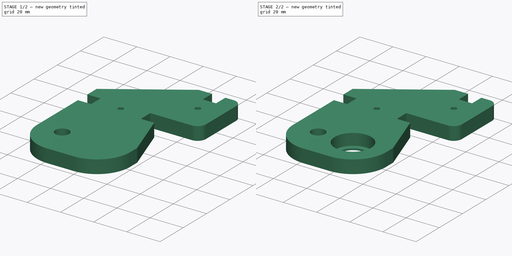
[diagram: build sequence overview — one tinted view per stage of 2, left to right]
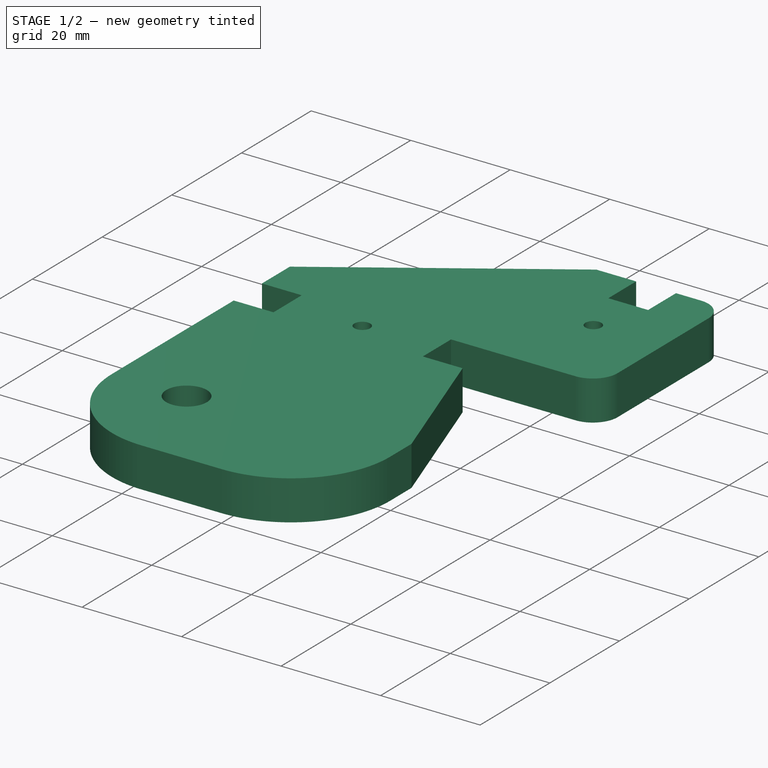
[diagram: stage 1 of 2 — iso view after this stage's code; geometry added in this stage tinted green]
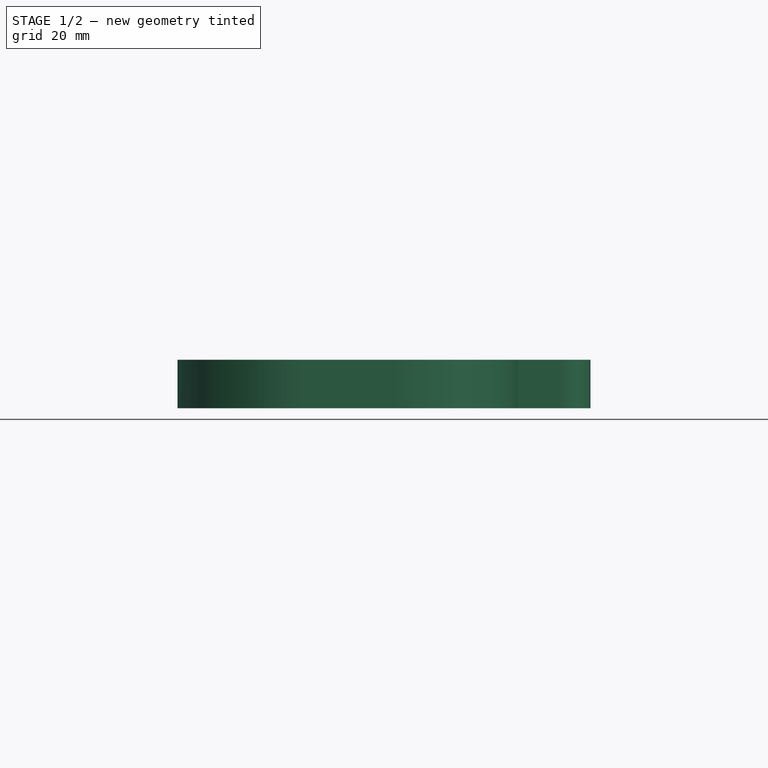
[diagram: stage 1 of 2 — front view after this stage's code; geometry added in this stage tinted green]
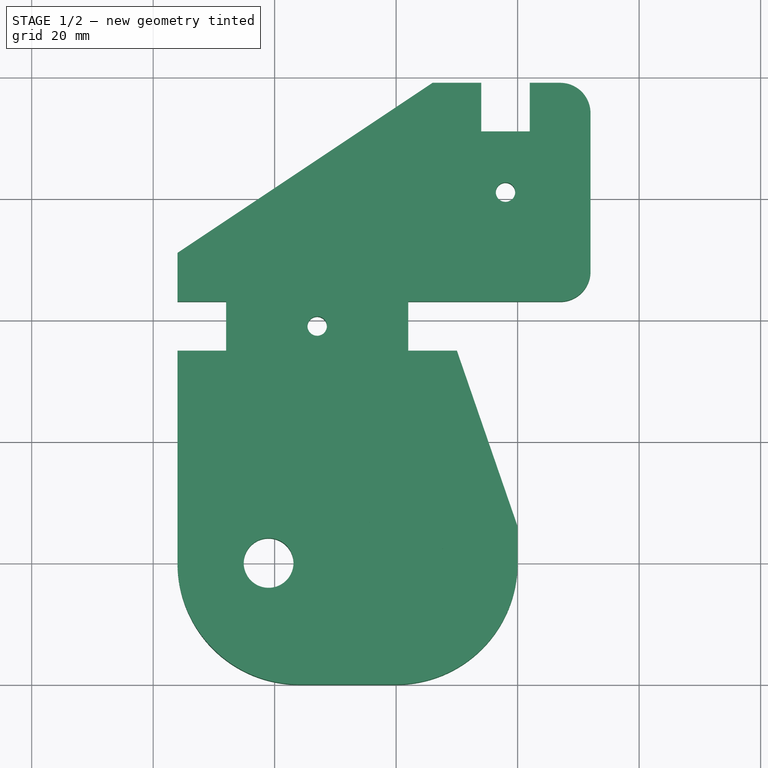
[diagram: stage 1 of 2 — top view after this stage's code; geometry added in this stage tinted green]
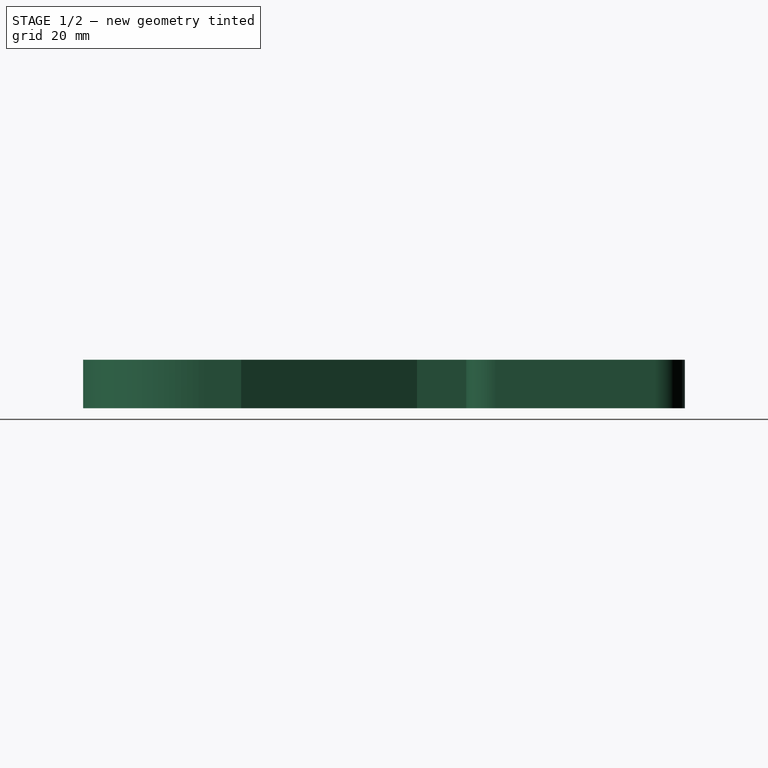
[diagram: stage 1 of 2 — right view after this stage's code; geometry added in this stage tinted green]
FCSTD DOCUMENT  (FreeCAD 0.16R6703 (Git))
Label: Z-upper-support
License: All rights reserved
LicenseURL: http://en.wikipedia.org/wiki/All_rights_reserved
objects: Sketcher::SketchObject×1, PartDesign::Pad×1, Part::Cylinder×1, Part::Cut×1
note: 5 computed .brp shape members not serialized (recipe doc carries the construction recipe); baked Part::Feature solids carry a one-line shape summary decoded from their .brp

FEATURE [Sketcher::SketchObject] Sketch
  sketch-geometry (41):
    g0: LineSegment StartX=5.1468e-07 StartY=-20 StartZ=0 EndX=-16 EndY=-20 EndZ=0
    g1: Circle CenterX=-21 CenterY=-1.9362e-08 CenterZ=0 NormalX=0 NormalY=0 NormalZ=1 Radius=4.1
    g2: Circle CenterX=2.47849e-07 CenterY=-1.9362e-08 CenterZ=0 NormalX=0 NormalY=0 NormalZ=1 Radius=8
    g3: LineSegment StartX=-36 StartY=51.05 StartZ=0 EndX=-36 EndY=43.05 EndZ=0
    g4: LineSegment StartX=-28 StartY=43.05 StartZ=0 EndX=-36 EndY=43.05 EndZ=0
    g5: LineSegment StartX=-28 StartY=34.95 StartZ=0 EndX=-36 EndY=34.95 EndZ=0
    g6: LineSegment [constr] StartX=2.47849e-07 StartY=-1.9362e-08 StartZ=0 EndX=-21 EndY=-1.9362e-08 EndZ=0
    g7: LineSegment [constr] StartX=2.47849e-07 StartY=-1.9362e-08 StartZ=0 EndX=2.47849e-07 EndY=-20 EndZ=0
    g8: ArcOfCircle CenterX=-16 CenterY=-1.40139e-07 CenterZ=0 NormalX=0 NormalY=0 NormalZ=1 Radius=20 StartAngle=3.14159 EndAngle=4.71239
    g9: ArcOfCircle CenterX=5.1468e-07 CenterY=-2.86194e-07 CenterZ=0 NormalX=0 NormalY=0 NormalZ=1 Radius=20 StartAngle=4.71239 EndAngle=6.28319
    g10: LineSegment StartX=-36 StartY=-1.9362e-08 StartZ=0 EndX=-36 EndY=34.95 EndZ=0
    g11: LineSegment [constr] StartX=-21 StartY=-1.9362e-08 StartZ=0 EndX=-36 EndY=-1.9362e-08 EndZ=0
    g12: LineSegment StartX=2 StartY=43.05 StartZ=0 EndX=27 EndY=43.05 EndZ=0
    g13: LineSegment StartX=32 StartY=48.05 StartZ=0 EndX=32 EndY=74.05 EndZ=0
    g14: ArcOfCircle CenterX=27 CenterY=74.05 CenterZ=0 NormalX=0 NormalY=0 NormalZ=1 Radius=5 StartAngle=0 EndAngle=1.5708
    g15: ArcOfCircle CenterX=27 CenterY=48.05 CenterZ=0 NormalX=0 NormalY=0 NormalZ=1 Radius=5 StartAngle=4.71239 EndAngle=6.28319
    g16: LineSegment StartX=6 StartY=79.05 StartZ=0 EndX=14 EndY=79.05 EndZ=0
    g17: LineSegment StartX=14 StartY=79.05 StartZ=0 EndX=14 EndY=71.05 EndZ=0
    g18: LineSegment StartX=22 StartY=71.05 StartZ=0 EndX=22 EndY=79.05 EndZ=0
    g19: LineSegment StartX=22 StartY=79.05 StartZ=0 EndX=27 EndY=79.05 EndZ=0
    g20: LineSegment [constr] StartX=22 StartY=43.05 StartZ=0 EndX=22 EndY=71.05 EndZ=0
    g21: LineSegment StartX=-36 StartY=51.05 StartZ=0 EndX=6 EndY=79.05 EndZ=0
    g22: LineSegment [constr] StartX=2 StartY=43.05 StartZ=0 EndX=2 EndY=71.05 EndZ=0
    g23: Circle CenterX=-13 CenterY=39 CenterZ=0 NormalX=0 NormalY=0 NormalZ=1 Radius=1.6
    g24: Circle CenterX=18 CenterY=61.05 CenterZ=0 NormalX=0 NormalY=0 NormalZ=1 Radius=1.6
    g25: LineSegment [constr] StartX=-28 StartY=43.05 StartZ=0 EndX=2 EndY=43.05 EndZ=0
    g26: LineSegment [constr] StartX=-13 StartY=39 StartZ=0 EndX=-13 EndY=43.05 EndZ=0
    g27: LineSegment [constr] StartX=-13 StartY=39 StartZ=0 EndX=2 EndY=39 EndZ=0
    g28: LineSegment [constr] StartX=-13 StartY=-1.9362e-08 StartZ=0 EndX=-13 EndY=39 EndZ=0
    g29: LineSegment [constr] StartX=2 StartY=71.05 StartZ=0 EndX=18 EndY=71.05 EndZ=0
    g30: LineSegment StartX=2 StartY=34.95 StartZ=0 EndX=2 EndY=39 EndZ=0
    g31: LineSegment StartX=2 StartY=39 StartZ=0 EndX=2 EndY=43.05 EndZ=0
    g32: LineSegment StartX=2 StartY=34.95 StartZ=0 EndX=10 EndY=34.95 EndZ=0
    g33: LineSegment StartX=-28 StartY=39 StartZ=0 EndX=-28 EndY=34.95 EndZ=0
    g34: LineSegment StartX=14 StartY=71.05 StartZ=0 EndX=18 EndY=71.05 EndZ=0
    g35: LineSegment StartX=18 StartY=71.05 StartZ=0 EndX=22 EndY=71.05 EndZ=0
    g36: LineSegment [constr] StartX=18 StartY=61.05 StartZ=0 EndX=18 EndY=71.05 EndZ=0
    g37: LineSegment StartX=10 StartY=34.95 StartZ=0 EndX=20 EndY=6 EndZ=0
    g38: LineSegment StartX=20 StartY=-1.9362e-08 StartZ=0 EndX=20 EndY=6 EndZ=0
    g39: LineSegment StartX=-28 StartY=39 StartZ=0 EndX=-28 EndY=43.05 EndZ=0
    g40: LineSegment [constr] StartX=2.47849e-07 StartY=-1.9362e-08 StartZ=0 EndX=20 EndY=-1.9362e-08 EndZ=0
  constraints (116):
    c: Horizontal(g0)
    c: Radius(g1) = 4.1
    c: Radius(g2) = 8
    c: Vertical(g3)
    c: Coincident(g4,g3)
    c: Horizontal(g4)
    c: Coincident(g6,g2)
    c: Coincident(g6,g1)
    c: Horizontal(g6)
    c: Distance(g6) = 21
    c: Coincident(g7,g2)
    c: PointOnObject(g7,g0)
    c: Vertical(g7)
    c: Distance(g7) = 20
    c: Equal(g1,g5)
    c: Distance(g5) = 8
    c: Tangent(g0,g8) = 1.5708
    c: Tangent(g0,g9) = 1.5708
    c: Coincident(g5,g10)
    c: Horizontal(g5)
    c: Horizontal(g12)
    c: Vertical(g13)
    c: Vertical(g10)
    c: Coincident(g11,g1)
    c: Horizontal(g11)
    c: Tangent(g13,g14) = -1.5708
    c: Radius(g14) = 5
    c: Distance(g11) = 15
    c: Tangent(g12,g15) = -1.5708
    c: Tangent(g13,g15) = -1.5708
    c: Horizontal(g16)
    c: Coincident(g17,g16)
    c: Vertical(g17)
    c: Vertical(g18)
    c: Coincident(g19,g18)
    c: Coincident(g19,g14)
    c: Horizontal(g19)
    c: Tangent(g19,g14)
    c: PointOnObject(g20,g12)
    c: Vertical(g20)
    c: Distance(g20) = 28
    c: Radius(g15) = 5
    c: Vertical(g22)
    c: Radius(g23) = 1.6
    c: Radius(g24) = 1.6
    c: Horizontal(g25)
    c: Coincident(g26,g23)
    c: Vertical(g26)
    c: Distance(g25) = 30
    c: Distance(g3) = 8
    c: Equal(g4,g5)
    c: PointOnObject(g26,g25)
    c: Equal(g17,g18)
    c: Coincident(g27,g23)
    c: Horizontal(g27)
    c: Distance(g27) = 15
    c: PointOnObject(g28,g6)
    c: Vertical(g28)
    c: Distance(g28) = 39
    c: Horizontal(g29)
    c: Distance(g29) = 16
    c: Vertical(g30)
    c: Coincident(g31,g30)
    c: PointOnObject(g31,g12)
    c: Vertical(g31)
    c: Equal(g30,g31)
    c: Horizontal(g32)
    c: Distance(g32) = 8
    c: PointOnObject(g30,g27)
    c: Coincident(g23,g28)
    c: Coincident(g30,g32)
    c: Coincident(g27,g30)
    c: Coincident(g22,g12)
    c: Coincident(g31,g12)
    c: Coincident(g25,g12)
    c: Coincident(g33,g5)
    c: Vertical(g33)
    c: Distance(g26) = 4.05
    c: Coincident(g25,g4)
    c: Coincident(g34,g17)
    c: Horizontal(g34)
    c: Coincident(g35,g34)
    c: Coincident(g35,g18)
    c: Horizontal(g35)
    c: Equal(g34,g35)
    c: Coincident(g34,g29)
    c: Coincident(g20,g18)
    c: Distance(g35) = 4
    c: Coincident(g36,g24)
    c: Coincident(g36,g29)
    c: Vertical(g36)
    c: Distance(g36) = 10
    c: Coincident(g21,g3)
    c: Coincident(g16,g21)
    c: Coincident(g37,g32)
    c: Coincident(g38,g9)
    c: Coincident(g38,g37)
    c: Vertical(g38)
    c: Distance(g18) = 8
    c: Coincident(g29,g22)
    c: Distance(g16) = 8
    c: Coincident(g39,g33)
    c: Coincident(g39,g4)
    c: Vertical(g39)
    c: Equal(g39,g33)
    c: Tangent(g38,g9)
    c: Distance(g39) = 4.05
    c: Coincident(g40,g2)
    c: Horizontal(g40)
    c: Distance(g40) = 20
    c: Distance(g19) = 5
    c: Coincident(g10,g8)
    c: Coincident(g9,g40)
    c: Coincident(g8,g11)
    c: Tangent(g8,g10)
    c: Distance(g38) = 6
FEATURE [PartDesign::Pad] Pad
  Length = 8
  Length2 = 100
  Sketch = -> Sketch
  Type = 0
FEATURE [Part::Cylinder] Cylinder
  Angle = 360
  Height = 7
  Placement = pos=(0,0,1) rot=(0,0,1;0rad)
  Radius = 11
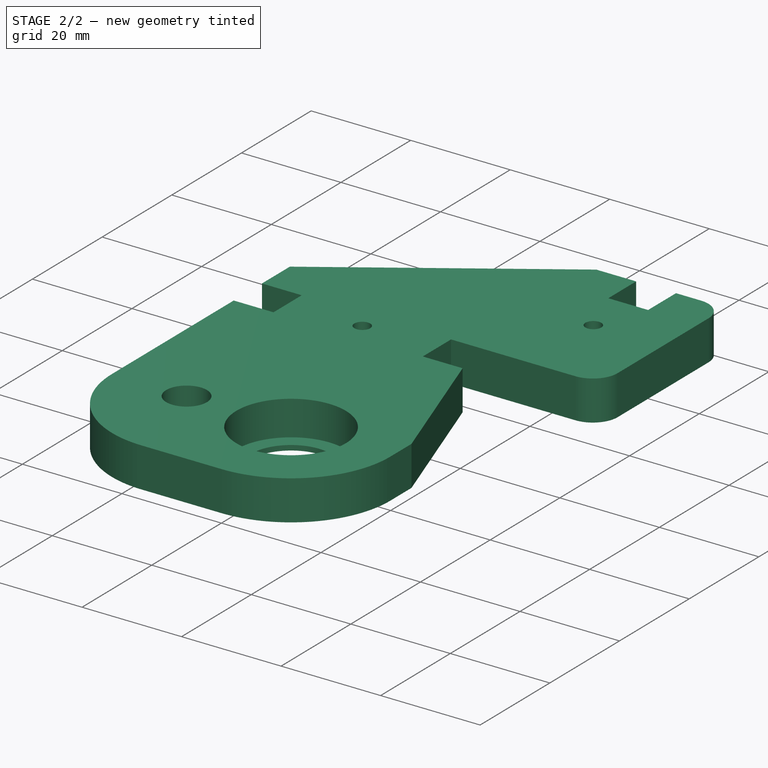
[diagram: stage 2 of 2 — iso view after this stage's code; geometry added in this stage tinted green]
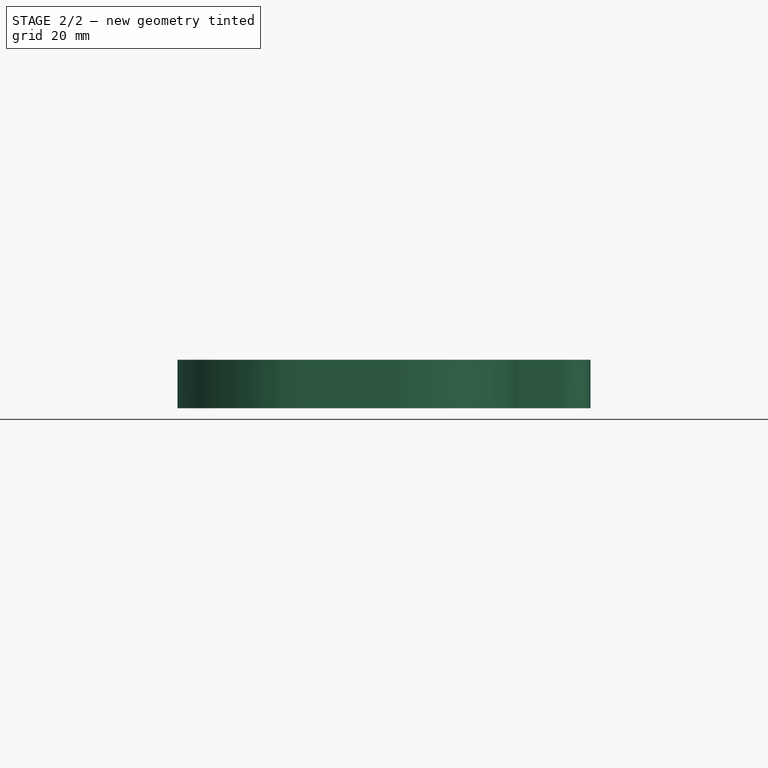
[diagram: stage 2 of 2 — front view after this stage's code; geometry added in this stage tinted green]
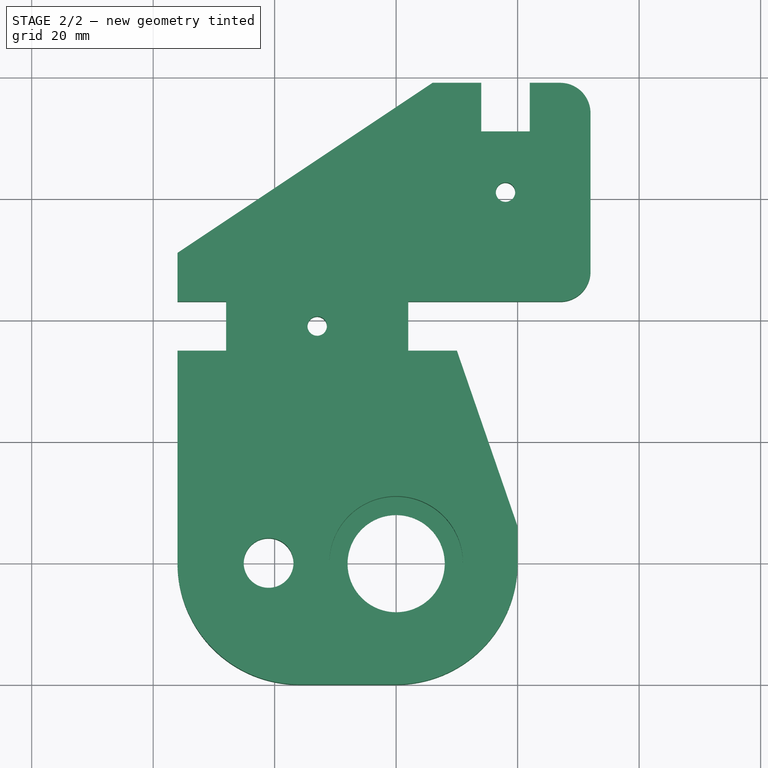
[diagram: stage 2 of 2 — top view after this stage's code; geometry added in this stage tinted green]
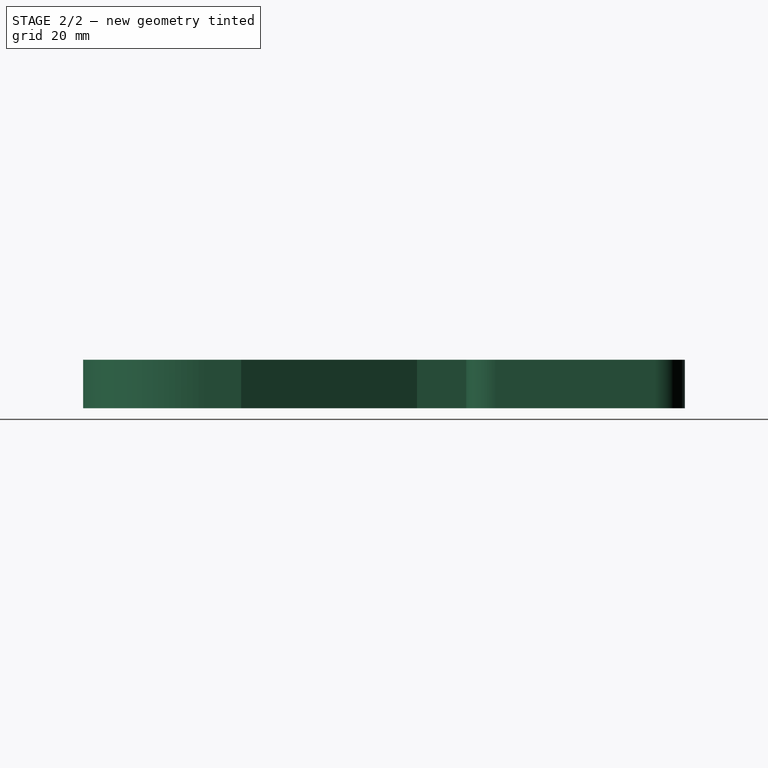
[diagram: stage 2 of 2 — right view after this stage's code; geometry added in this stage tinted green]
FEATURE [Part::Cut] Cut
  Base = -> Pad
  Tool = -> Cylinder
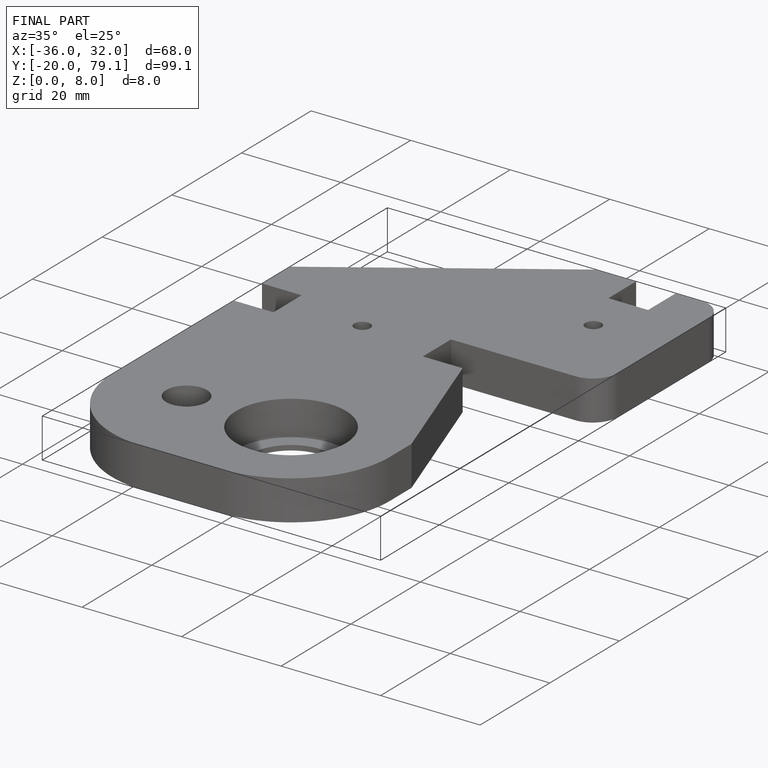
[diagram: finished part — iso view with bounding-box wireframe]
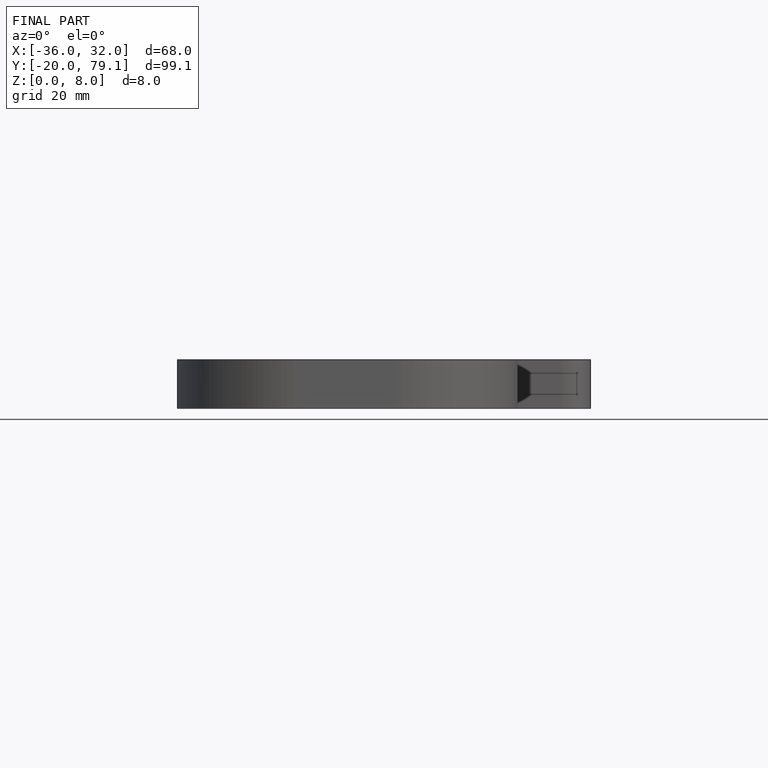
[diagram: finished part — front view with bounding-box wireframe]
